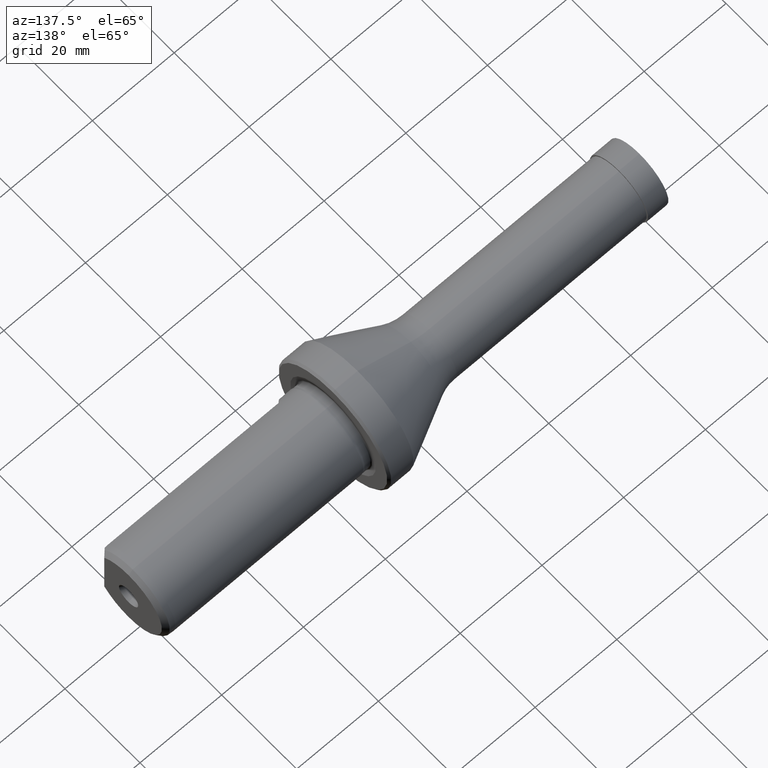
[diagram: clean part render]
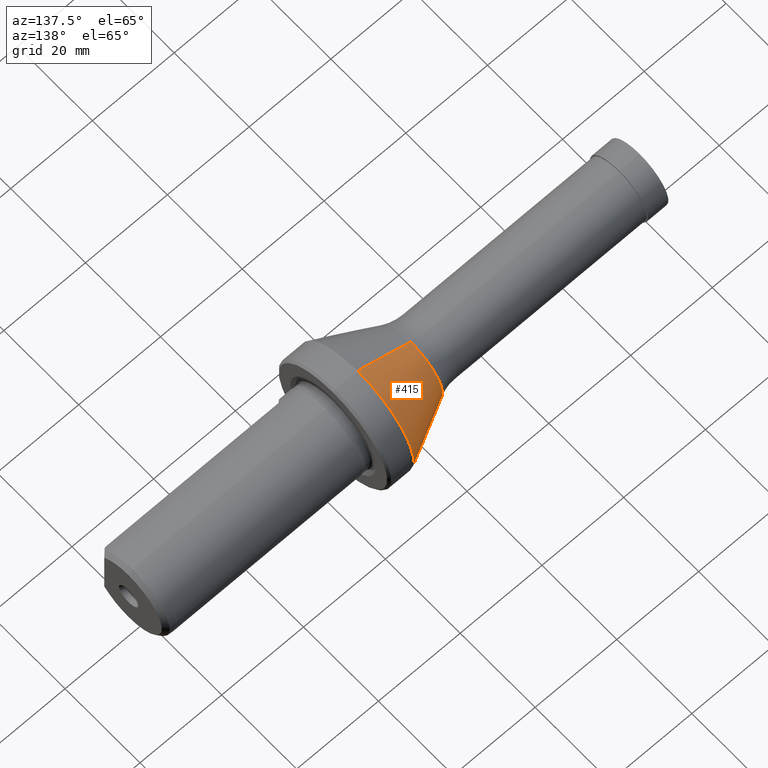
[diagram: same view with one face highlighted and labeled with its STEP entity id]
A machine part, auxiliary view. The second image highlights one B-rep face of the part: STEP entity #415.
In plain terms, the highlighted conical surface has half-angle 26.529 deg.
Its self-contained STEP definition (entity closure, byte-faithful):
#45 = CARTESIAN_POINT ( 'NONE',  ( 68.45000000000000300, 1.836970198721029600E-015, 14.99999999999999800 ) ) ;
#47 = VERTEX_POINT ( 'NONE', #472 ) ;
#56 = FACE_OUTER_BOUND ( 'NONE', #1186, .T. ) ;
#67 = CARTESIAN_POINT ( 'NONE',  ( 68.45000000000000300, 0.0000000000000000000, -14.99999999999999800 ) ) ;
#95 = VECTOR ( 'NONE', #623, 1000.000000000000200 ) ;
#117 = CARTESIAN_POINT ( 'NONE',  ( 55.43554605212926100, 0.0000000000000000000, 0.0000000000000000000 ) ) ;
#120 = AXIS2_PLACEMENT_3D ( 'NONE', #711, #812, #241 ) ;
#128 = EDGE_CURVE ( 'NONE', #47, #634, #723, .T. ) ;
#154 = ORIENTED_EDGE ( 'NONE', *, *, #1184, .T. ) ;
#241 = DIRECTION ( 'NONE',  ( 0.0000000000000000000, 0.0000000000000000000, -1.000000000000000000 ) ) ;
#303 = AXIS2_PLACEMENT_3D ( 'NONE', #117, #671, #863 ) ;
#366 = ORIENTED_EDGE ( 'NONE', *, *, #450, .F. ) ;
#381 = DIRECTION ( 'NONE',  ( -1.000000000000000000, -0.0000000000000000000, -0.0000000000000000000 ) ) ;
#412 = CIRCLE ( 'NONE', #303, 8.502935321335348500 ) ;
#415 = ADVANCED_FACE ( 'NONE', ( #56 ), #708, .T. ) ;
#450 = EDGE_CURVE ( 'NONE', #47, #1180, #412, .T. ) ;
#472 = CARTESIAN_POINT ( 'NONE',  ( 55.43554605212926100, 0.0000000000000000000, 8.502935321335346700 ) ) ;
#471 = VECTOR ( 'NONE', #959, 1000.000000000000200 ) ;
#622 = AXIS2_PLACEMENT_3D ( 'NONE', #946, #381, #845 ) ;
#623 = DIRECTION ( 'NONE',  ( 0.8947064678664644600, 0.0000000000000000000, -0.4466546052129263800 ) ) ;
#634 = VERTEX_POINT ( 'NONE', #45 ) ;
#662 = VERTEX_POINT ( 'NONE', #691 ) ;
#671 = DIRECTION ( 'NONE',  ( -1.000000000000000000, -0.0000000000000000000, -0.0000000000000000000 ) ) ;
#691 = CARTESIAN_POINT ( 'NONE',  ( 68.45000000000000300, 0.0000000000000000000, -14.99999999999999800 ) ) ;
#700 = LINE ( 'NONE', #67, #95 ) ;
#707 = CIRCLE ( 'NONE', #622, 14.99999999999999800 ) ;
#708 = CONICAL_SURFACE ( 'NONE', #120, 14.99999999999999800, 0.4630227364362859400 ) ;
#711 = CARTESIAN_POINT ( 'NONE',  ( 68.45000000000000300, 0.0000000000000000000, 0.0000000000000000000 ) ) ;
#723 = LINE ( 'NONE', #1061, #471 ) ;
#812 = DIRECTION ( 'NONE',  ( 1.000000000000000000, 0.0000000000000000000, 0.0000000000000000000 ) ) ;
#845 = DIRECTION ( 'NONE',  ( 0.0000000000000000000, 0.0000000000000000000, 1.000000000000000000 ) ) ;
#863 = DIRECTION ( 'NONE',  ( 0.0000000000000000000, 0.0000000000000000000, 1.000000000000000000 ) ) ;
#946 = CARTESIAN_POINT ( 'NONE',  ( 68.45000000000000300, 0.0000000000000000000, 0.0000000000000000000 ) ) ;
#959 = DIRECTION ( 'NONE',  ( 0.8947064678664644600, 5.469941325984350200E-017, 0.4466546052129263800 ) ) ;
#1053 = CARTESIAN_POINT ( 'NONE',  ( 55.43554605212926100, 1.041309252463030300E-015, -8.502935321335346700 ) ) ;
#1061 = CARTESIAN_POINT ( 'NONE',  ( 68.45000000000000300, 1.836970198721029600E-015, 14.99999999999999800 ) ) ;
#1078 = ORIENTED_EDGE ( 'NONE', *, *, #128, .T. ) ;
#1105 = EDGE_CURVE ( 'NONE', #1180, #662, #700, .T. ) ;
#1173 = ORIENTED_EDGE ( 'NONE', *, *, #1105, .F. ) ;
#1180 = VERTEX_POINT ( 'NONE', #1053 ) ;
#1184 = EDGE_CURVE ( 'NONE', #634, #662, #707, .T. ) ;
#1186 = EDGE_LOOP ( 'NONE', ( #366, #1078, #154, #1173 ) ) ;